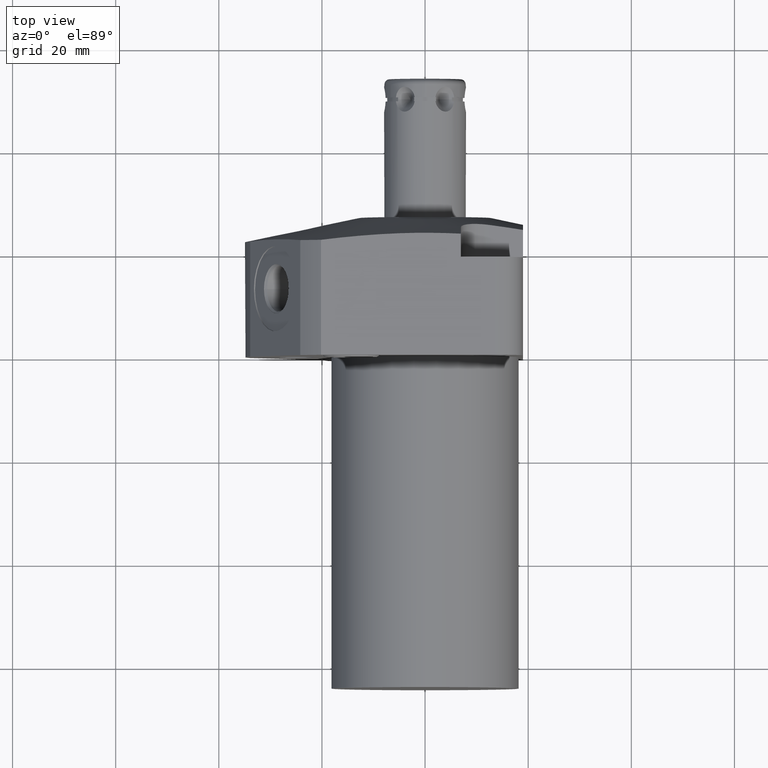
[diagram: clean part render]
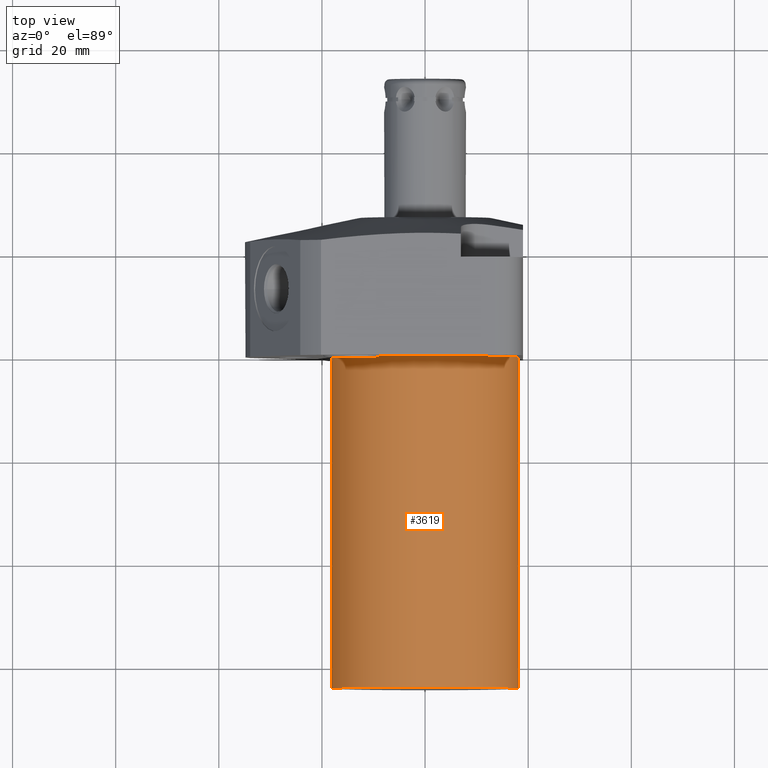
[diagram: same view with one face highlighted and labeled with its STEP entity id]
A machine part, top view. The second image highlights one B-rep face of the part: STEP entity #3619.
In plain terms, the highlighted cylindrical surface (partial cylindrical patch) has radius 18.1355 mm, axis along (0, -1, 0).
Its self-contained STEP definition (entity closure, byte-faithful):
#313=CARTESIAN_POINT('',(0.E0,0.E0,0.E0));
#314=DIRECTION('',(0.E0,-1.E0,0.E0));
#315=DIRECTION('',(1.E0,0.E0,0.E0));
#316=AXIS2_PLACEMENT_3D('',#313,#314,#315);
#460=CARTESIAN_POINT('',(0.E0,-6.4262E1,0.E0));
#461=DIRECTION('',(0.E0,-1.E0,0.E0));
#462=DIRECTION('',(1.E0,0.E0,0.E0));
#463=AXIS2_PLACEMENT_3D('',#460,#461,#462);
#468=DIRECTION('',(0.E0,1.E0,0.E0));
#469=VECTOR('',#468,6.4262E1);
#470=CARTESIAN_POINT('',(1.81355E1,-6.4262E1,0.E0));
#471=LINE('',#470,#469);
#475=DIRECTION('',(0.E0,1.E0,0.E0));
#476=VECTOR('',#475,6.4262E1);
#477=CARTESIAN_POINT('',(-1.81355E1,-6.4262E1,0.E0));
#478=LINE('',#477,#476);
#2958=CARTESIAN_POINT('',(1.81355E1,-6.4262E1,0.E0));
#2959=CARTESIAN_POINT('',(1.81355E1,0.E0,0.E0));
#2960=VERTEX_POINT('',#2958);
#2961=VERTEX_POINT('',#2959);
#2962=CARTESIAN_POINT('',(-1.81355E1,-6.4262E1,0.E0));
#2963=CARTESIAN_POINT('',(-1.81355E1,0.E0,0.E0));
#2964=VERTEX_POINT('',#2962);
#2965=VERTEX_POINT('',#2963);
#3605=CARTESIAN_POINT('',(0.E0,3.15631E1,0.E0));
#3606=DIRECTION('',(0.E0,-1.E0,0.E0));
#3607=DIRECTION('',(-1.E0,0.E0,0.E0));
#3608=AXIS2_PLACEMENT_3D('',#3605,#3606,#3607);
#3609=CYLINDRICAL_SURFACE('',#3608,1.81355E1);
#3611=ORIENTED_EDGE('',*,*,#3610,.F.);
#3613=ORIENTED_EDGE('',*,*,#3612,.T.);
#3615=ORIENTED_EDGE('',*,*,#3614,.T.);
#3616=ORIENTED_EDGE('',*,*,#3569,.F.);
#3617=EDGE_LOOP('',(#3611,#3613,#3615,#3616));
#3618=FACE_OUTER_BOUND('',#3617,.F.);
#3619=ADVANCED_FACE('',(#3618),#3609,.T.);
#317=CIRCLE('',#316,1.81355E1);
#464=CIRCLE('',#463,1.81355E1);
#3569=EDGE_CURVE('',#2961,#2965,#317,.T.);
#3610=EDGE_CURVE('',#2960,#2961,#471,.T.);
#3612=EDGE_CURVE('',#2960,#2964,#464,.T.);
#3614=EDGE_CURVE('',#2964,#2965,#478,.T.);